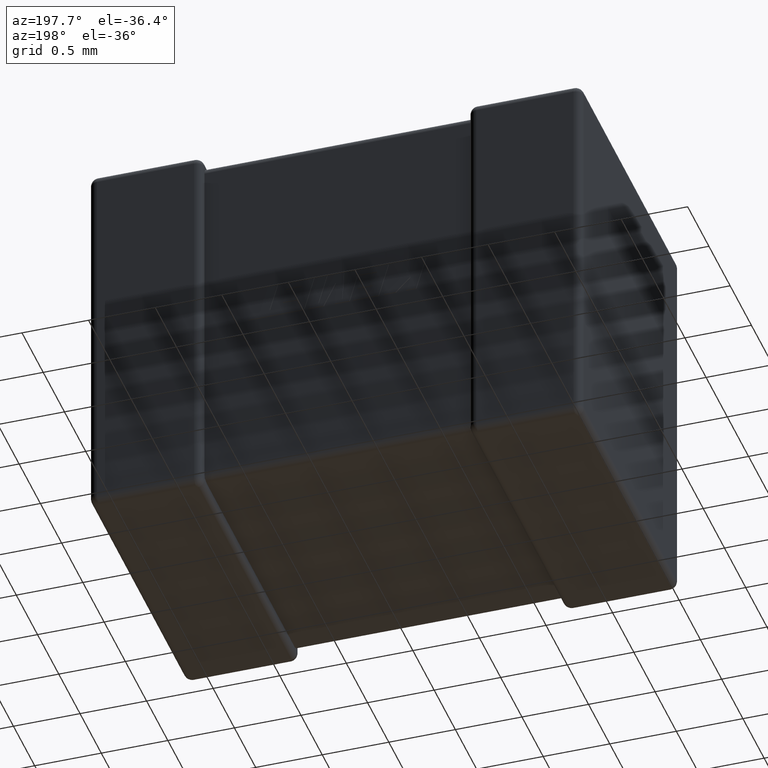
[diagram: clean part render]
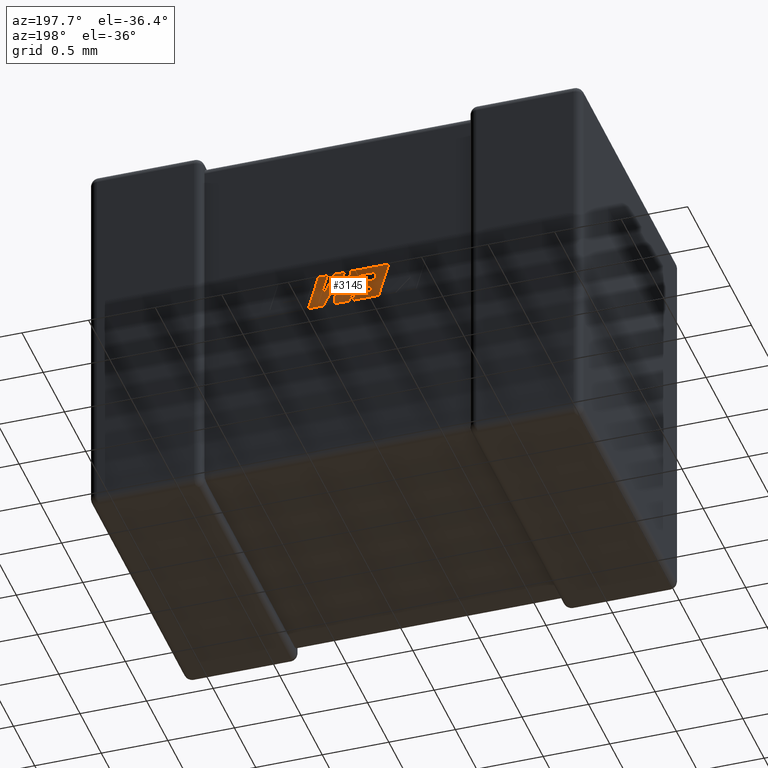
[diagram: same view with one face highlighted and labeled with its STEP entity id]
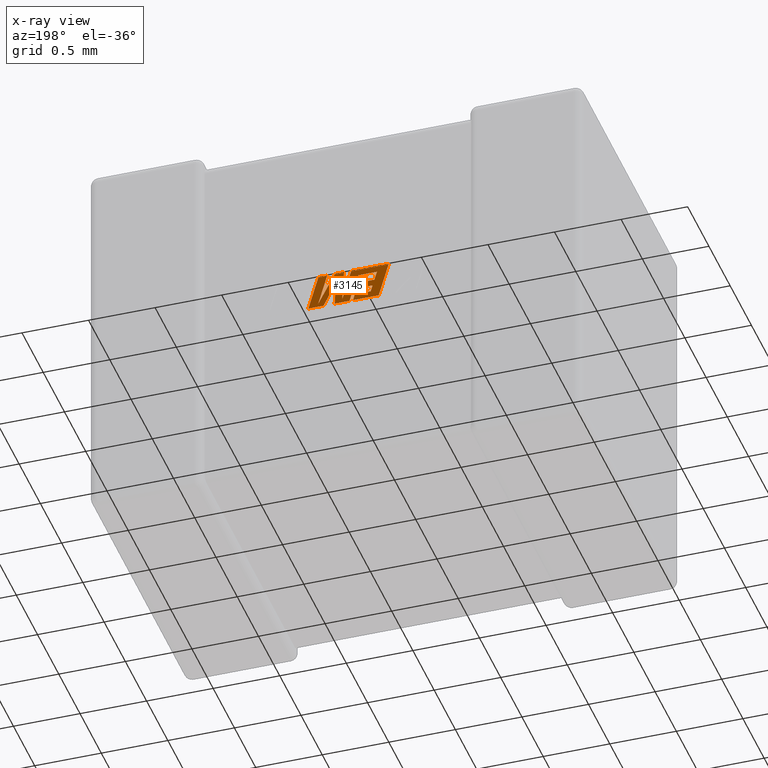
[diagram: x-ray of the same camera — body ghosted, the highlighted face saturated]
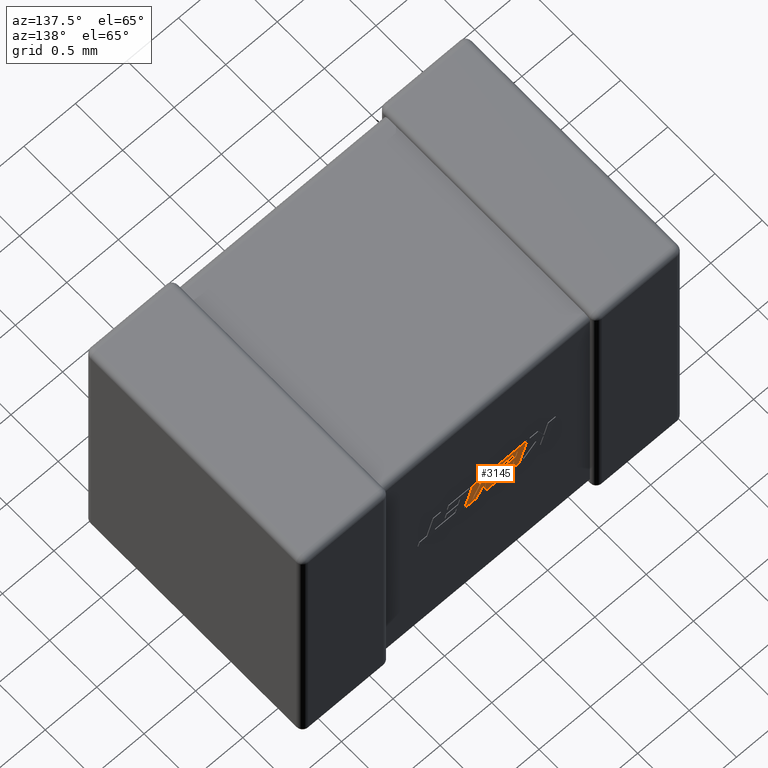
[diagram: same view with one face highlighted and labeled with its STEP entity id]
A machine part, auxiliary view. The second image highlights one B-rep face of the part: STEP entity #3145.
The next image is the same camera in x-ray: the body ghosted, the highlighted face saturated — about 0% of this face is hidden behind the body in this view.
A second angle (auxiliary view) of the same face is appended — the face is thin or edge-on in the first view.
In plain terms, the highlighted planar face has unit normal (0, -1, 0).
Its self-contained STEP definition (entity closure, byte-faithful):
#10 = EDGE_CURVE ( 'NONE', #1057, #2851, #11, .T. ) ;
#11 = LINE ( 'NONE', #4393, #815 ) ;
#30 = DIRECTION ( 'NONE',  ( -0.05596501978068186400, 0.0000000000000000000, 0.9984327301130245800 ) ) ;
#55 = LINE ( 'NONE', #1068, #2192 ) ;
#58 = EDGE_CURVE ( 'NONE', #2851, #2114, #4399, .T. ) ;
#116 = EDGE_CURVE ( 'NONE', #2133, #2969, #2088, .T. ) ;
#135 = CARTESIAN_POINT ( 'NONE',  ( 1.719779381685080600, 2.244680000000000200, -1.450588152432583400 ) ) ;
#150 = ORIENTED_EDGE ( 'NONE', *, *, #537, .T. ) ;
#154 = DIRECTION ( 'NONE',  ( 1.000000000000000000, 0.0000000000000000000, 0.0000000000000000000 ) ) ;
#182 = ORIENTED_EDGE ( 'NONE', *, *, #993, .T. ) ;
#183 = DIRECTION ( 'NONE',  ( 0.4668459304955247000, 0.0000000000000000000, -0.8843386665637592600 ) ) ;
#288 = VECTOR ( 'NONE', #457, 1000.000000000000100 ) ;
#345 = ORIENTED_EDGE ( 'NONE', *, *, #4169, .T. ) ;
#361 = VERTEX_POINT ( 'NONE', #3162 ) ;
#378 = CARTESIAN_POINT ( 'NONE',  ( 1.870900345051778700, 2.244680000000000200, -1.238589999999999900 ) ) ;
#381 = AXIS2_PLACEMENT_3D ( 'NONE', #3082, #3861, #2079 ) ;
#396 = EDGE_CURVE ( 'NONE', #3413, #792, #55, .T. ) ;
#405 = CARTESIAN_POINT ( 'NONE',  ( 1.465151672025832600, 2.244680000000000200, -1.238589999999999900 ) ) ;
#427 = VECTOR ( 'NONE', #2825, 1000.000000000000000 ) ;
#457 = DIRECTION ( 'NONE',  ( -0.4443210308329503800, 0.0000000000000000000, 0.8958676361826809500 ) ) ;
#499 = CARTESIAN_POINT ( 'NONE',  ( 1.801096784111157800, 2.244680000000000200, -1.238589999999999900 ) ) ;
#500 = VERTEX_POINT ( 'NONE', #4277 ) ;
#505 = DIRECTION ( 'NONE',  ( -1.000000000000000000, 0.0000000000000000000, 0.0000000000000000000 ) ) ;
#506 = CARTESIAN_POINT ( 'NONE',  ( 1.954265106198868500, 2.244680000000000200, -1.500427594001502800 ) ) ;
#509 = ORIENTED_EDGE ( 'NONE', *, *, #3795, .T. ) ;
#521 = VERTEX_POINT ( 'NONE', #1114 ) ;
#537 = EDGE_CURVE ( 'NONE', #2678, #2133, #4228, .T. ) ;
#542 = PLANE ( 'NONE',  #381 ) ;
#636 = EDGE_CURVE ( 'NONE', #2969, #361, #935, .T. ) ;
#643 = EDGE_CURVE ( 'NONE', #4655, #2678, #1854, .T. ) ;
#665 = VECTOR ( 'NONE', #154, 1000.000000000000000 ) ;
#668 = LINE ( 'NONE', #1916, #998 ) ;
#727 = EDGE_CURVE ( 'NONE', #2619, #521, #1014, .T. ) ;
#792 = VERTEX_POINT ( 'NONE', #4188 ) ;
#808 = LINE ( 'NONE', #2089, #427 ) ;
#809 = EDGE_CURVE ( 'NONE', #877, #1702, #4660, .T. ) ;
#815 = VECTOR ( 'NONE', #2188, 1000.000000000000000 ) ;
#826 = DIRECTION ( 'NONE',  ( -1.000000000000000000, 0.0000000000000000000, 0.0000000000000000000 ) ) ;
#827 = ORIENTED_EDGE ( 'NONE', *, *, #636, .T. ) ;
#877 = VERTEX_POINT ( 'NONE', #2808 ) ;
#935 = LINE ( 'NONE', #506, #288 ) ;
#993 = EDGE_CURVE ( 'NONE', #3235, #2656, #4264, .T. ) ;
#998 = VECTOR ( 'NONE', #826, 1000.000000000000000 ) ;
#1014 = LINE ( 'NONE', #3352, #2000 ) ;
#1022 = EDGE_CURVE ( 'NONE', #2593, #2619, #4031, .T. ) ;
#1038 = VECTOR ( 'NONE', #1232, 1000.000000000000100 ) ;
#1051 = ORIENTED_EDGE ( 'NONE', *, *, #3001, .T. ) ;
#1057 = VERTEX_POINT ( 'NONE', #1559 ) ;
#1068 = CARTESIAN_POINT ( 'NONE',  ( 1.760051554850793100, 2.244680000000000200, -1.500427594001502800 ) ) ;
#1097 = VECTOR ( 'NONE', #2308, 1000.000000000000000 ) ;
#1114 = CARTESIAN_POINT ( 'NONE',  ( 1.600483498175578200, 2.244680000000000200, -1.450588152432583400 ) ) ;
#1143 = VERTEX_POINT ( 'NONE', #1893 ) ;
#1159 = VECTOR ( 'NONE', #1834, 1000.000000000000000 ) ;
#1192 = ORIENTED_EDGE ( 'NONE', *, *, #1022, .T. ) ;
#1193 = CARTESIAN_POINT ( 'NONE',  ( 1.927288075097057800, 2.244680000000000200, -1.238589999999999900 ) ) ;
#1232 = DIRECTION ( 'NONE',  ( -0.2760118818968593800, 0.0000000000000000000, 0.9611542233438680200 ) ) ;
#1233 = CARTESIAN_POINT ( 'NONE',  ( 1.814163107572999100, 2.244680000000000200, -1.471697127589175900 ) ) ;
#1245 = CARTESIAN_POINT ( 'NONE',  ( 1.572502203732613300, 2.244680000000000200, -1.353481612160163400 ) ) ;
#1258 = CARTESIAN_POINT ( 'NONE',  ( 1.600483498175578200, 2.244680000000000200, -1.450588152432583400 ) ) ;
#1309 = CARTESIAN_POINT ( 'NONE',  ( 1.871558922654546400, 2.244680000000000200, -1.500427594001502800 ) ) ;
#1377 = LINE ( 'NONE', #3394, #4498 ) ;
#1449 = DIRECTION ( 'NONE',  ( -1.000000000000000000, 0.0000000000000000000, 0.0000000000000000000 ) ) ;
#1467 = CARTESIAN_POINT ( 'NONE',  ( 1.993825055172228100, 2.244680000000000200, -1.238589999999999900 ) ) ;
#1500 = DIRECTION ( 'NONE',  ( 1.000000000000000000, 0.0000000000000000000, 0.0000000000000000000 ) ) ;
#1530 = ORIENTED_EDGE ( 'NONE', *, *, #4281, .T. ) ;
#1536 = ORIENTED_EDGE ( 'NONE', *, *, #809, .T. ) ;
#1559 = CARTESIAN_POINT ( 'NONE',  ( 1.540497991155025600, 2.244680000000000200, -1.500427594001502800 ) ) ;
#1564 = CARTESIAN_POINT ( 'NONE',  ( 1.698695883152314000, 2.244680000000000200, -1.401886401347971300 ) ) ;
#1604 = EDGE_CURVE ( 'NONE', #361, #1143, #3716, .T. ) ;
#1629 = VECTOR ( 'NONE', #183, 1000.000000000000000 ) ;
#1661 = DIRECTION ( 'NONE',  ( 0.2759782365590801000, 0.0000000000000000000, -0.9611638845408936300 ) ) ;
#1702 = VERTEX_POINT ( 'NONE', #1245 ) ;
#1711 = DIRECTION ( 'NONE',  ( -1.000000000000000000, 0.0000000000000000000, 0.0000000000000000000 ) ) ;
#1760 = CARTESIAN_POINT ( 'NONE',  ( 1.698695883152314000, 2.244680000000000200, -1.401886401347971300 ) ) ;
#1785 = LINE ( 'NONE', #3364, #2358 ) ;
#1834 = DIRECTION ( 'NONE',  ( 1.000000000000000000, 0.0000000000000000000, 0.0000000000000000000 ) ) ;
#1842 = CARTESIAN_POINT ( 'NONE',  ( 1.801096784111157800, 2.244680000000000200, -1.238589999999999900 ) ) ;
#1848 = LINE ( 'NONE', #2319, #2246 ) ;
#1854 = LINE ( 'NONE', #1193, #665 ) ;
#1893 = CARTESIAN_POINT ( 'NONE',  ( 1.871558922654546400, 2.244680000000000200, -1.500427594001502800 ) ) ;
#1896 = VECTOR ( 'NONE', #2581, 1000.000000000000200 ) ;
#1899 = VECTOR ( 'NONE', #1925, 1000.000000000000000 ) ;
#1913 = LINE ( 'NONE', #1309, #3595 ) ;
#1916 = CARTESIAN_POINT ( 'NONE',  ( 1.699108286000269300, 2.244680000000000200, -1.288404761090040000 ) ) ;
#1925 = DIRECTION ( 'NONE',  ( 1.000000000000000000, 0.0000000000000000000, 0.0000000000000000000 ) ) ;
#1937 = VERTEX_POINT ( 'NONE', #135 ) ;
#2000 = VECTOR ( 'NONE', #2662, 1000.000000000000100 ) ;
#2024 = LINE ( 'NONE', #1258, #1899 ) ;
#2079 = DIRECTION ( 'NONE',  ( 0.0000000000000000000, 0.0000000000000000000, -1.000000000000000000 ) ) ;
#2088 = LINE ( 'NONE', #2911, #1097 ) ;
#2089 = CARTESIAN_POINT ( 'NONE',  ( 1.572502203732613300, 2.244680000000000200, -1.353481612160163400 ) ) ;
#2114 = VERTEX_POINT ( 'NONE', #2311 ) ;
#2117 = ORIENTED_EDGE ( 'NONE', *, *, #3100, .T. ) ;
#2133 = VERTEX_POINT ( 'NONE', #2690 ) ;
#2152 = CARTESIAN_POINT ( 'NONE',  ( 1.814163107572999100, 2.244680000000000200, -1.471697127589175900 ) ) ;
#2188 = DIRECTION ( 'NONE',  ( -0.2765379750249969400, 0.0000000000000000000, 0.9610029908221275900 ) ) ;
#2192 = VECTOR ( 'NONE', #2490, 1000.000000000000200 ) ;
#2246 = VECTOR ( 'NONE', #505, 1000.000000000000000 ) ;
#2257 = CARTESIAN_POINT ( 'NONE',  ( 1.994551138952188600, 2.244680000000000200, -1.472819691327440900 ) ) ;
#2269 = DIRECTION ( 'NONE',  ( 0.05375259206908434400, 0.0000000000000000000, -0.9985542843760946100 ) ) ;
#2289 = ORIENTED_EDGE ( 'NONE', *, *, #3948, .T. ) ;
#2301 = CARTESIAN_POINT ( 'NONE',  ( 1.994551138952188600, 2.244680000000000200, -1.472819691327440900 ) ) ;
#2308 = DIRECTION ( 'NONE',  ( -1.000000000000000000, 0.0000000000000000000, 0.0000000000000000000 ) ) ;
#2311 = CARTESIAN_POINT ( 'NONE',  ( 1.747231239827945500, 2.244680000000000200, -1.238589999999999900 ) ) ;
#2319 = CARTESIAN_POINT ( 'NONE',  ( 1.733934830817171400, 2.244680000000000200, -1.500427594001502800 ) ) ;
#2326 = CARTESIAN_POINT ( 'NONE',  ( 1.993825055172228100, 2.244680000000000200, -1.238589999999999900 ) ) ;
#2337 = CARTESIAN_POINT ( 'NONE',  ( 1.870900345051778700, 2.244680000000000200, -1.238589999999999900 ) ) ;
#2358 = VECTOR ( 'NONE', #3005, 1000.000000000000200 ) ;
#2409 = LINE ( 'NONE', #2802, #2629 ) ;
#2490 = DIRECTION ( 'NONE',  ( -0.2762517575166416100, 0.0000000000000000000, 0.9610853065513833600 ) ) ;
#2553 = ORIENTED_EDGE ( 'NONE', *, *, #10, .T. ) ;
#2562 = ORIENTED_EDGE ( 'NONE', *, *, #3217, .T. ) ;
#2581 = DIRECTION ( 'NONE',  ( 0.2763139702539146300, 0.0000000000000000000, -0.9610674221107063900 ) ) ;
#2586 = LINE ( 'NONE', #2337, #1629 ) ;
#2593 = VERTEX_POINT ( 'NONE', #1564 ) ;
#2619 = VERTEX_POINT ( 'NONE', #2638 ) ;
#2629 = VECTOR ( 'NONE', #1661, 1000.000000000000200 ) ;
#2638 = CARTESIAN_POINT ( 'NONE',  ( 1.586312126153601700, 2.244680000000000200, -1.401886401347971300 ) ) ;
#2656 = VERTEX_POINT ( 'NONE', #499 ) ;
#2662 = DIRECTION ( 'NONE',  ( 0.2793947940878428500, 0.0000000000000000000, -0.9601763114327555000 ) ) ;
#2678 = VERTEX_POINT ( 'NONE', #2326 ) ;
#2684 = ORIENTED_EDGE ( 'NONE', *, *, #4654, .T. ) ;
#2690 = CARTESIAN_POINT ( 'NONE',  ( 2.069105294098018800, 2.244680000000000200, -1.500427594001502800 ) ) ;
#2711 = CARTESIAN_POINT ( 'NONE',  ( 1.553959998429676800, 2.244680000000000200, -1.288404761090040000 ) ) ;
#2802 = CARTESIAN_POINT ( 'NONE',  ( 1.747231239827945500, 2.244680000000000200, -1.238589999999999900 ) ) ;
#2808 = CARTESIAN_POINT ( 'NONE',  ( 1.553959998429676800, 2.244680000000000200, -1.288404761090040000 ) ) ;
#2825 = DIRECTION ( 'NONE',  ( 1.000000000000000000, 0.0000000000000000000, 0.0000000000000000000 ) ) ;
#2851 = VERTEX_POINT ( 'NONE', #3232 ) ;
#2891 = ORIENTED_EDGE ( 'NONE', *, *, #727, .T. ) ;
#2899 = ORIENTED_EDGE ( 'NONE', *, *, #3511, .T. ) ;
#2904 = CARTESIAN_POINT ( 'NONE',  ( 1.684870037841423900, 2.244680000000000200, -1.353481612160163400 ) ) ;
#2911 = CARTESIAN_POINT ( 'NONE',  ( 2.069105294098018800, 2.244680000000000200, -1.500427594001502800 ) ) ;
#2941 = VERTEX_POINT ( 'NONE', #378 ) ;
#2969 = VERTEX_POINT ( 'NONE', #3400 ) ;
#3001 = EDGE_CURVE ( 'NONE', #3864, #2593, #1785, .T. ) ;
#3005 = DIRECTION ( 'NONE',  ( 0.2746459304917039400, 0.0000000000000000000, -0.9615454294334439000 ) ) ;
#3055 = EDGE_CURVE ( 'NONE', #3883, #4655, #4294, .T. ) ;
#3079 = LINE ( 'NONE', #1842, #3686 ) ;
#3082 = CARTESIAN_POINT ( 'NONE',  ( -0.0002456965282611293900, 2.244679999999999300, -0.3580587491940538900 ) ) ;
#3100 = EDGE_CURVE ( 'NONE', #1702, #3864, #808, .T. ) ;
#3145 = ADVANCED_FACE ( 'NONE', ( #3587 ), #542, .F. ) ;
#3162 = CARTESIAN_POINT ( 'NONE',  ( 1.861489397514085200, 2.244680000000000200, -1.313367452646506500 ) ) ;
#3217 = EDGE_CURVE ( 'NONE', #500, #1057, #1848, .T. ) ;
#3232 = CARTESIAN_POINT ( 'NONE',  ( 1.465151672025832600, 2.244680000000000200, -1.238589999999999900 ) ) ;
#3235 = VERTEX_POINT ( 'NONE', #1233 ) ;
#3276 = VECTOR ( 'NONE', #30, 1000.000000000000200 ) ;
#3311 = CARTESIAN_POINT ( 'NONE',  ( 1.861489397514085200, 2.244680000000000200, -1.313367452646506500 ) ) ;
#3345 = ORIENTED_EDGE ( 'NONE', *, *, #396, .T. ) ;
#3352 = CARTESIAN_POINT ( 'NONE',  ( 1.586312126153601700, 2.244680000000000200, -1.401886401347971300 ) ) ;
#3364 = CARTESIAN_POINT ( 'NONE',  ( 1.684870037841423900, 2.244680000000000200, -1.353481612160163400 ) ) ;
#3394 = CARTESIAN_POINT ( 'NONE',  ( 1.719779381685080600, 2.244680000000000200, -1.450588152432583400 ) ) ;
#3400 = CARTESIAN_POINT ( 'NONE',  ( 1.954265106198868500, 2.244680000000000200, -1.500427594001502800 ) ) ;
#3406 = ORIENTED_EDGE ( 'NONE', *, *, #3468, .T. ) ;
#3413 = VERTEX_POINT ( 'NONE', #3774 ) ;
#3447 = ORIENTED_EDGE ( 'NONE', *, *, #643, .T. ) ;
#3468 = EDGE_CURVE ( 'NONE', #1937, #500, #1377, .T. ) ;
#3497 = ORIENTED_EDGE ( 'NONE', *, *, #3055, .T. ) ;
#3511 = EDGE_CURVE ( 'NONE', #2114, #3235, #2409, .T. ) ;
#3516 = VECTOR ( 'NONE', #3817, 1000.000000000000200 ) ;
#3587 = FACE_OUTER_BOUND ( 'NONE', #3850, .T. ) ;
#3595 = VECTOR ( 'NONE', #1711, 1000.000000000000000 ) ;
#3658 = VECTOR ( 'NONE', #2269, 1000.000000000000200 ) ;
#3686 = VECTOR ( 'NONE', #1500, 1000.000000000000000 ) ;
#3716 = LINE ( 'NONE', #3311, #3658 ) ;
#3774 = CARTESIAN_POINT ( 'NONE',  ( 1.760051554850793100, 2.244680000000000200, -1.500427594001502800 ) ) ;
#3795 = EDGE_CURVE ( 'NONE', #2656, #2941, #3079, .T. ) ;
#3817 = DIRECTION ( 'NONE',  ( 0.2740217765953990000, 0.0000000000000000000, -0.9617234872620618000 ) ) ;
#3850 = EDGE_LOOP ( 'NONE', ( #4361, #827, #3933, #345, #3345, #2289, #1536, #2117, #1051, #1192, #2891, #2684, #3406, #2562, #2553, #3856, #2899, #182, #509, #1530, #3497, #3447, #150 ) ) ;
#3856 = ORIENTED_EDGE ( 'NONE', *, *, #58, .T. ) ;
#3861 = DIRECTION ( 'NONE',  ( 0.0000000000000000000, -1.000000000000000000, 0.0000000000000000000 ) ) ;
#3864 = VERTEX_POINT ( 'NONE', #2904 ) ;
#3883 = VERTEX_POINT ( 'NONE', #2257 ) ;
#3933 = ORIENTED_EDGE ( 'NONE', *, *, #1604, .T. ) ;
#3948 = EDGE_CURVE ( 'NONE', #792, #877, #668, .T. ) ;
#4031 = LINE ( 'NONE', #1760, #4371 ) ;
#4095 = CARTESIAN_POINT ( 'NONE',  ( 1.927288075097057800, 2.244680000000000200, -1.238589999999999900 ) ) ;
#4169 = EDGE_CURVE ( 'NONE', #1143, #3413, #1913, .T. ) ;
#4188 = CARTESIAN_POINT ( 'NONE',  ( 1.699108286000269300, 2.244680000000000200, -1.288404761090040000 ) ) ;
#4228 = LINE ( 'NONE', #1467, #1896 ) ;
#4264 = LINE ( 'NONE', #2152, #3276 ) ;
#4277 = CARTESIAN_POINT ( 'NONE',  ( 1.733934830817171400, 2.244680000000000200, -1.500427594001502800 ) ) ;
#4281 = EDGE_CURVE ( 'NONE', #2941, #3883, #2586, .T. ) ;
#4294 = LINE ( 'NONE', #2301, #1038 ) ;
#4361 = ORIENTED_EDGE ( 'NONE', *, *, #116, .T. ) ;
#4371 = VECTOR ( 'NONE', #1449, 1000.000000000000000 ) ;
#4393 = CARTESIAN_POINT ( 'NONE',  ( 1.540497991155025600, 2.244680000000000200, -1.500427594001502800 ) ) ;
#4399 = LINE ( 'NONE', #405, #1159 ) ;
#4491 = DIRECTION ( 'NONE',  ( 0.2732148821746424000, 0.0000000000000000000, -0.9619530280415443700 ) ) ;
#4498 = VECTOR ( 'NONE', #4491, 1000.000000000000000 ) ;
#4654 = EDGE_CURVE ( 'NONE', #521, #1937, #2024, .T. ) ;
#4655 = VERTEX_POINT ( 'NONE', #4095 ) ;
#4660 = LINE ( 'NONE', #2711, #3516 ) ;